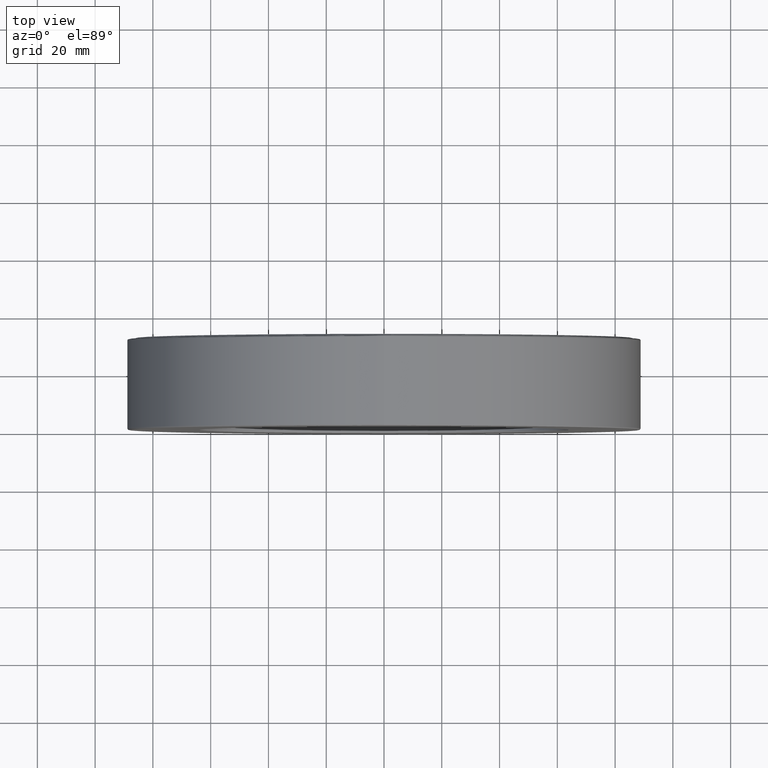
[diagram: clean part render]
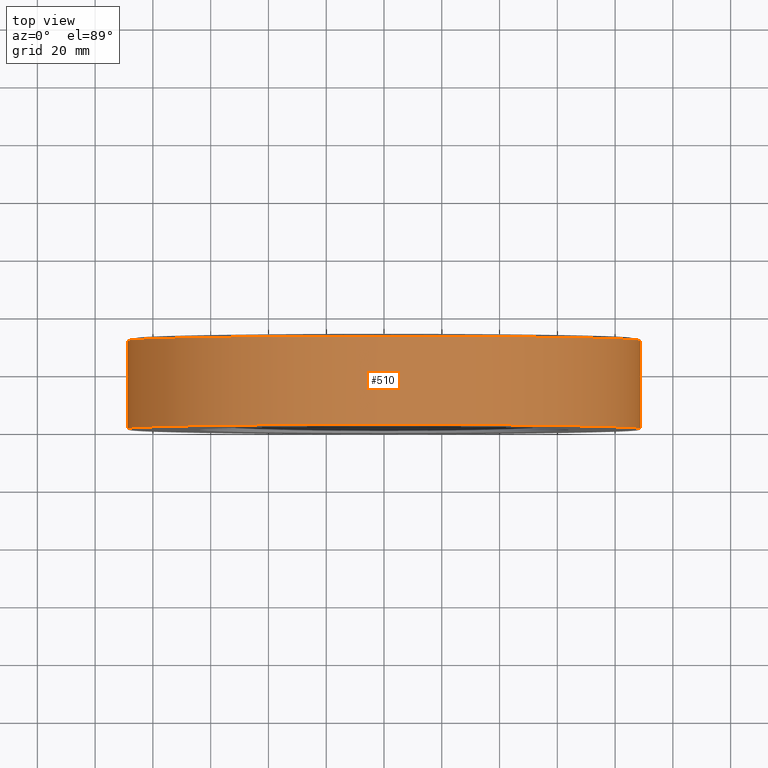
[diagram: same view with one face highlighted and labeled with its STEP entity id]
A machine part, top view. The second image highlights one B-rep face of the part: STEP entity #510.
In plain terms, the highlighted cylindrical surface (bore or boss wall) has radius 88.9 mm, axis along (-0, 1, -0).
Its self-contained STEP definition (entity closure, byte-faithful):
#66 = CARTESIAN_POINT ( 'NONE',  ( 0.0000000000000000000, 0.01500000000000024900, 0.0000000000000000000 ) ) ;
#68 = FACE_OUTER_BOUND ( 'NONE', #130, .T. ) ;
#69 = DIRECTION ( 'NONE',  ( -0.0000000000000000000, 1.000000000000000000, -0.0000000000000000000 ) ) ;
#89 = ORIENTED_EDGE ( 'NONE', *, *, #117, .T. ) ;
#116 = DIRECTION ( 'NONE',  ( 0.0000000000000000000, 0.0000000000000000000, 1.000000000000000000 ) ) ;
#117 = EDGE_CURVE ( 'NONE', #205, #205, #362, .T. ) ;
#130 = EDGE_LOOP ( 'NONE', ( #308 ) ) ;
#179 = FACE_OUTER_BOUND ( 'NONE', #299, .T. ) ;
#205 = VERTEX_POINT ( 'NONE', #567 ) ;
#216 = EDGE_CURVE ( 'NONE', #601, #601, #409, .T. ) ;
#271 = AXIS2_PLACEMENT_3D ( 'NONE', #318, #504, #556 ) ;
#299 = EDGE_LOOP ( 'NONE', ( #89 ) ) ;
#304 = DIRECTION ( 'NONE',  ( -0.0000000000000000000, 1.000000000000000000, -0.0000000000000000000 ) ) ;
#308 = ORIENTED_EDGE ( 'NONE', *, *, #216, .F. ) ;
#318 = CARTESIAN_POINT ( 'NONE',  ( 0.0000000000000000000, 0.0000000000000000000, 0.0000000000000000000 ) ) ;
#362 = CIRCLE ( 'NONE', #398, 3.499999999999999100 ) ;
#364 = CYLINDRICAL_SURFACE ( 'NONE', #271, 3.499999999999999100 ) ;
#389 = DIRECTION ( 'NONE',  ( 0.0000000000000000000, 0.0000000000000000000, 1.000000000000000000 ) ) ;
#391 = CARTESIAN_POINT ( 'NONE',  ( 0.0000000000000000000, 1.214999999999999900, 0.0000000000000000000 ) ) ;
#398 = AXIS2_PLACEMENT_3D ( 'NONE', #66, #69, #116 ) ;
#409 = CIRCLE ( 'NONE', #500, 3.500000000000000000 ) ;
#426 = CARTESIAN_POINT ( 'NONE',  ( 0.0000000000000000000, 1.214999999999999900, 3.500000000000000000 ) ) ;
#500 = AXIS2_PLACEMENT_3D ( 'NONE', #391, #304, #389 ) ;
#504 = DIRECTION ( 'NONE',  ( -0.0000000000000000000, 1.000000000000000000, -0.0000000000000000000 ) ) ;
#510 = ADVANCED_FACE ( 'NONE', ( #68, #179 ), #364, .T. ) ;
#556 = DIRECTION ( 'NONE',  ( 0.0000000000000000000, 0.0000000000000000000, 1.000000000000000000 ) ) ;
#567 = CARTESIAN_POINT ( 'NONE',  ( 0.0000000000000000000, 0.01500000000000024900, 3.499999999999999100 ) ) ;
#601 = VERTEX_POINT ( 'NONE', #426 ) ;